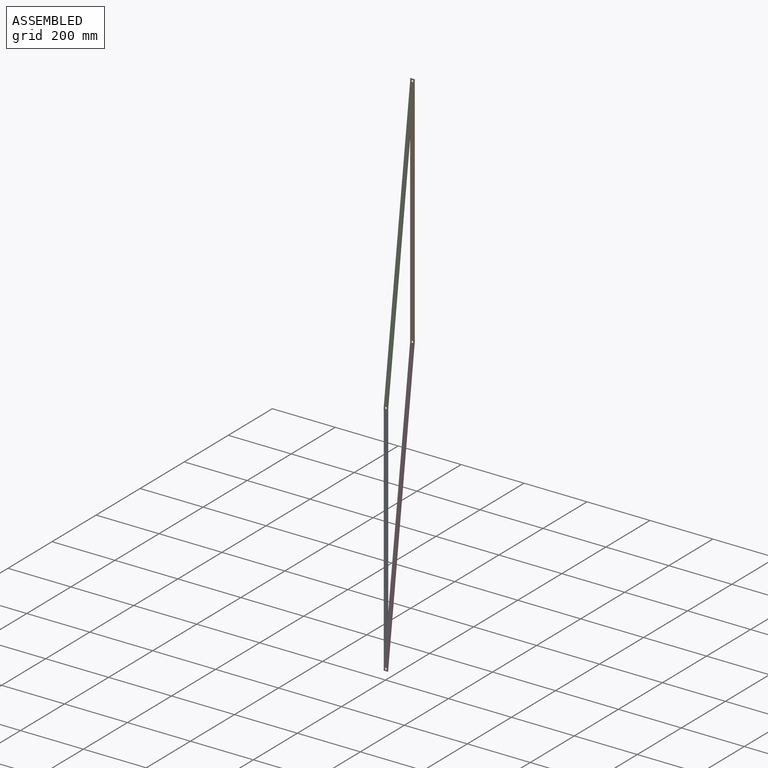
[diagram: assembled view]
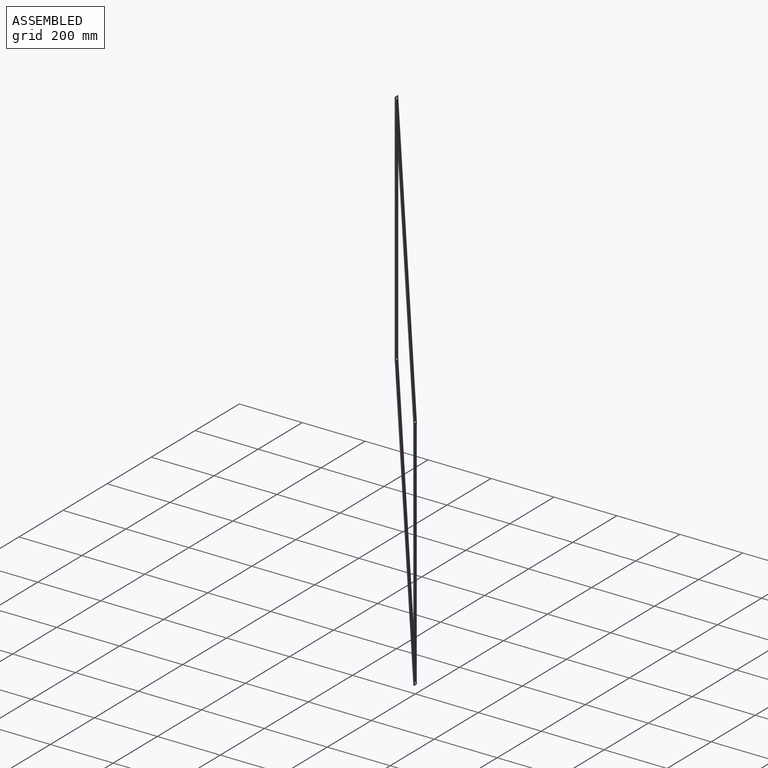
[diagram: assembled view, second angle]
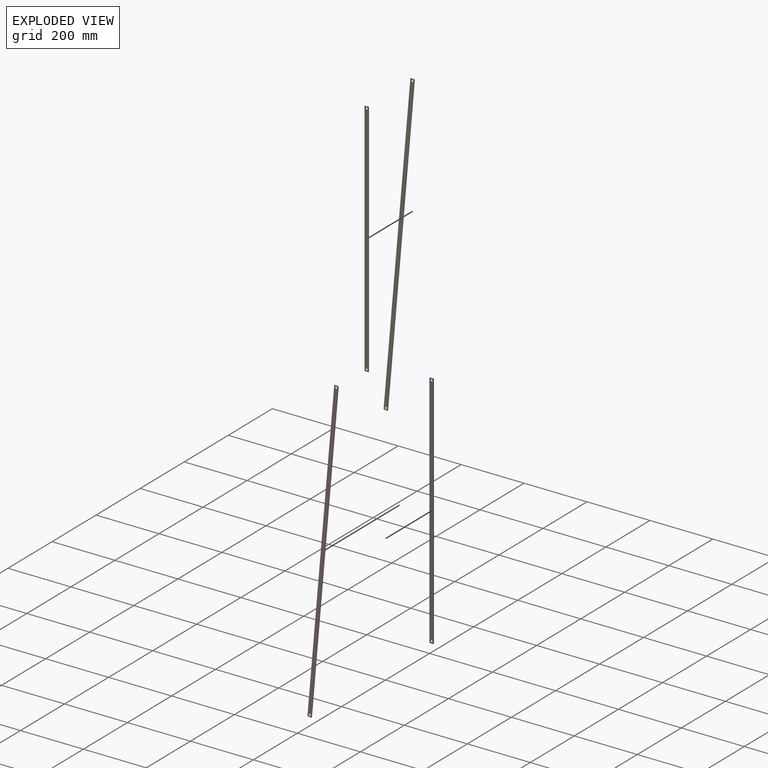
[diagram: exploded view]
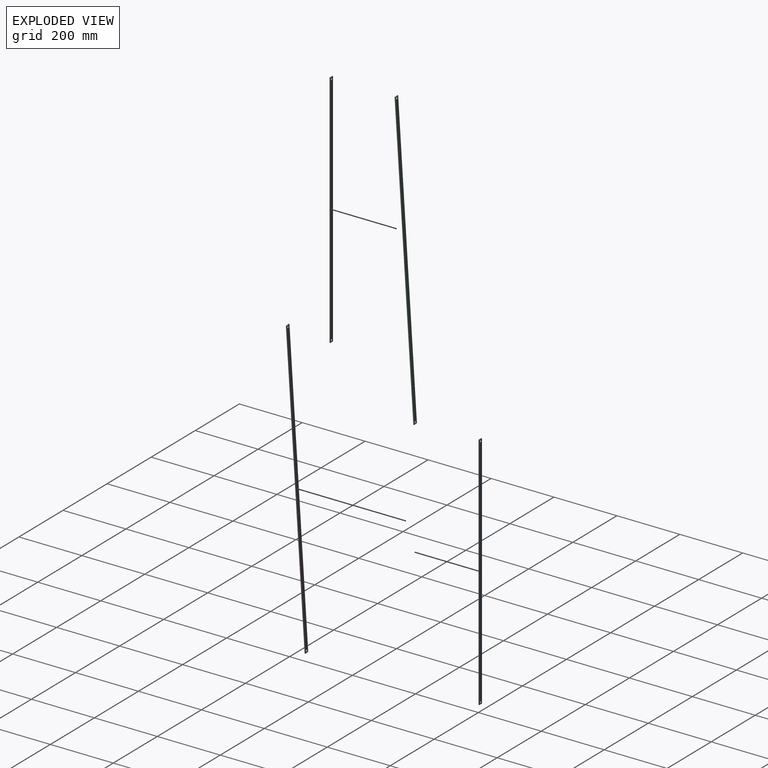
[diagram: exploded view, second angle]
ASSEMBLY  parts=4 mates=7
PART A: 8 faces, bbox 12.7x2.5x762 mm
  f0: plane 762x2.54mm, normal (-1,0,0), area 1935.5mm2, adj f1,f4,f6,f7
  f1: plane 12.7x2.54mm, normal (0,0,-1), area 32.3mm2, adj f0,f2,f6,f7
  f2: plane 762x2.54mm, normal (1,0,0), area 1935.5mm2, adj f1,f4,f6,f7
  f3: cylinder r=3.17mm len=6.35mm, axis (0,1,0), area 50.7mm2, adj f6,f7
  f4: plane 12.7x2.54mm, normal (0,0,1), area 32.3mm2, adj f0,f2,f6,f7
  f5: cylinder r=3.17mm len=6.35mm, axis (0,1,0), area 50.7mm2, adj f6,f7
  f6: plane 762x12.7mm, normal (0,-1,0), area 9614.1mm2, adj f0,f1,f2,f3,f4,f5
  f7: plane 762x12.7mm, normal (0,1,0), area 9614.1mm2, adj f0,f1,f2,f3,f4,f5
PART B: same geometry as A
PART C: 8 faces, bbox 977.9x2.5x12.7 mm
  f0: plane 12.7x2.54mm, normal (-1,0,0), area 32.3mm2, adj f1,f4,f6,f7
  f1: plane 977.9x2.54mm, normal (0,0,-1), area 2483.9mm2, adj f0,f2,f6,f7
  f2: plane 12.7x2.54mm, normal (1,0,0), area 32.3mm2, adj f1,f4,f6,f7
  f3: cylinder r=3.17mm len=6.35mm, axis (0,1,0), area 50.7mm2, adj f6,f7
  f4: plane 977.9x2.54mm, normal (0,0,1), area 2483.9mm2, adj f0,f2,f6,f7
  f5: cylinder r=3.17mm len=6.35mm, axis (0,1,0), area 50.7mm2, adj f6,f7
  f6: plane 977.9x12.7mm, normal (0,-1,0), area 12356mm2, adj f0,f1,f2,f3,f4,f5
  f7: plane 977.9x12.7mm, normal (0,1,0), area 12356mm2, adj f0,f1,f2,f3,f4,f5
PART D: same geometry as C
PLACE A t=(-4.81,1.27,-754.9)mm fixed
PLACE B t=(79.31,1.27,206.63)mm
PLACE C rot(axis=(0,-1,0),85deg) t=(7.31,1.27,-6.13)mm
PLACE D rot(axis=(0,-1,0),85deg) t=(7.31,1.27,-755.43)mm
MATE cylindrical A.f3 <-> D.f3  axis (0,-1,0) through (1.54,-1.27,-748.55)mm
MATE planar A.f6 <-> C.f6  axis (0,-1,0) through (1.54,-1.27,-373.9)mm
MATE cylindrical C.f5 <-> B.f5  axis (0,-1,0) through (85.66,-1.27,962.28)mm
MATE planar C.f6 <-> B.f6  axis (0,-1,0) through (43.6,-1.27,481.51)mm
MATE planar A.f6 <-> D.f6  axis (0,-1,0) through (1.54,-1.27,-373.9)mm
MATE cylindrical D.f5 <-> B.f3  axis (0,-1,0) through (85.66,-1.27,212.98)mm
MATE cylindrical A.f5 <-> C.f3  axis (0,-1,0) through (1.54,-1.27,0.75)mm
